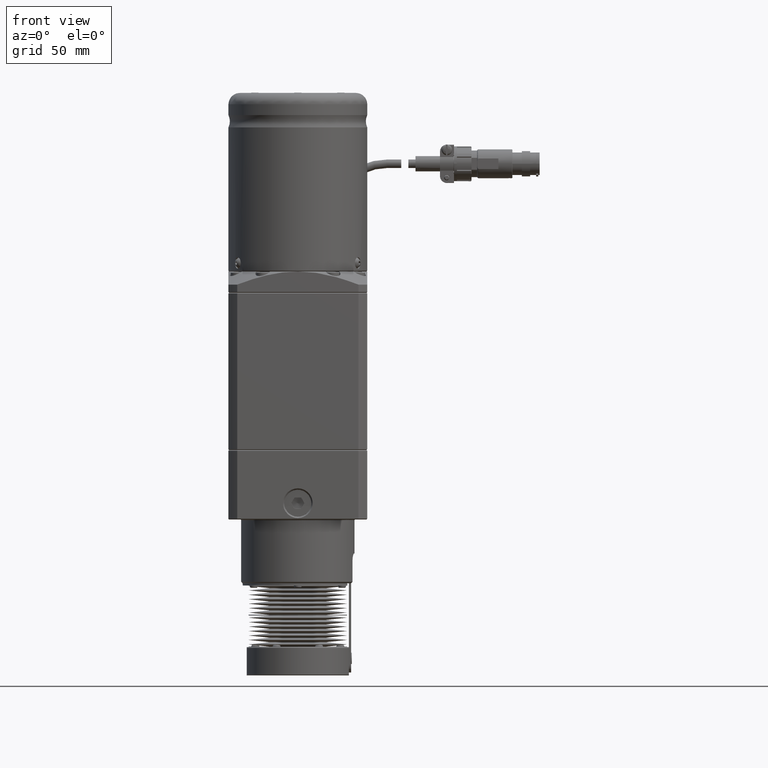
[diagram: clean part render]
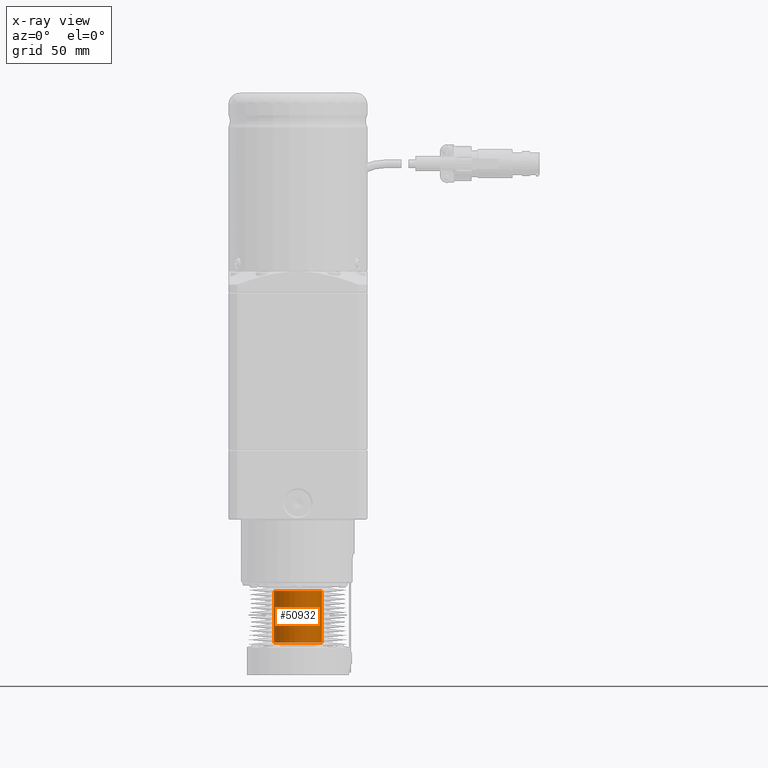
[diagram: x-ray — body ghosted, one internal face saturated and labeled with its STEP entity id]
A machine part, front view, then the same camera in x-ray: the body is ghosted and one INTERNAL B-rep face — a face not visible from any outside direction — is saturated and labeled: STEP entity #50932.
In plain terms, the highlighted cylindrical surface (bore or boss wall) has radius 17 mm, axis along (-0, -0, 1).
Its self-contained STEP definition (entity closure, byte-faithful):
#1301=CYLINDRICAL_SURFACE('',#55443,17.);
#4558=FACE_OUTER_BOUND('',#7707,.T.);
#7707=EDGE_LOOP('',(#41677,#41678,#41679,#41680));
#11680=LINE('',#84629,#15902);
#15902=VECTOR('',#66582,17.);
#18884=CIRCLE('',#55432,17.);
#18892=CIRCLE('',#55444,17.);
#22785=VERTEX_POINT('',#84605);
#22792=VERTEX_POINT('',#84627);
#29434=EDGE_CURVE('',#22785,#22785,#18884,.T.);
#29445=EDGE_CURVE('',#22792,#22792,#18892,.T.);
#29446=EDGE_CURVE('',#22792,#22785,#11680,.T.);
#41677=ORIENTED_EDGE('',*,*,#29445,.F.);
#41678=ORIENTED_EDGE('',*,*,#29446,.T.);
#41679=ORIENTED_EDGE('',*,*,#29434,.F.);
#41680=ORIENTED_EDGE('',*,*,#29446,.F.);
#50932=ADVANCED_FACE('',(#4558),#1301,.T.);
#55432=AXIS2_PLACEMENT_3D('',#84606,#66553,#66554);
#55443=AXIS2_PLACEMENT_3D('',#84626,#66578,#66579);
#55444=AXIS2_PLACEMENT_3D('',#84628,#66580,#66581);
#66553=DIRECTION('center_axis',(7.94341904815019E-16,2.40487134188145E-15,
-1.));
#66554=DIRECTION('ref_axis',(-1.,1.60045057544859E-16,-7.94341904815018E-16));
#66578=DIRECTION('center_axis',(-7.94341904815019E-16,-2.40487134188145E-15,
1.));
#66579=DIRECTION('ref_axis',(-1.,1.60045057544859E-16,-7.94341904815018E-16));
#66580=DIRECTION('center_axis',(-7.94341904815019E-16,-2.40487134188145E-15,
1.));
#66581=DIRECTION('ref_axis',(-1.,1.60045057544859E-16,-7.94341904815018E-16));
#66582=DIRECTION('',(7.94341904815019E-16,2.40487134188145E-15,-1.));
#84605=CARTESIAN_POINT('',(17.,-6.01147064000865E-14,-42.0000000000001));
#84606=CARTESIAN_POINT('Origin',(-1.82698638107454E-14,-5.53120408632735E-14,
-42.0000000000001));
#84626=CARTESIAN_POINT('Origin',(-1.58868380963004E-14,-4.80974268376291E-14,
-45.0000000000001));
#84627=CARTESIAN_POINT('',(17.,-1.43728711261658E-13,-5.5000000000001));
#84628=CARTESIAN_POINT('Origin',(-4.72633433364936E-14,-1.43089844841946E-13,
-5.50000000000012));
#84629=CARTESIAN_POINT('',(17.,-4.87362932573412E-14,-45.0000000000001));